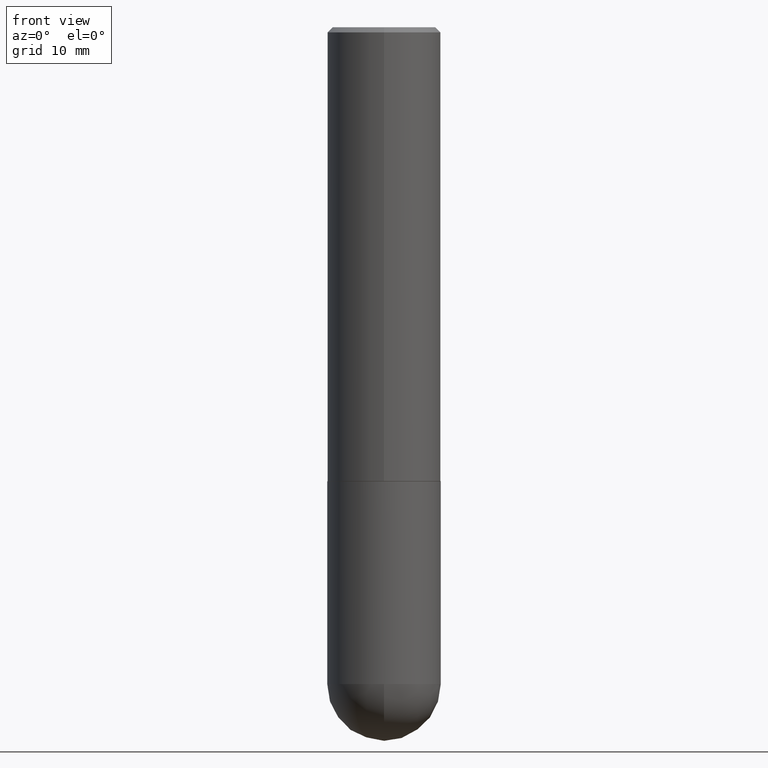
[diagram: clean part render]
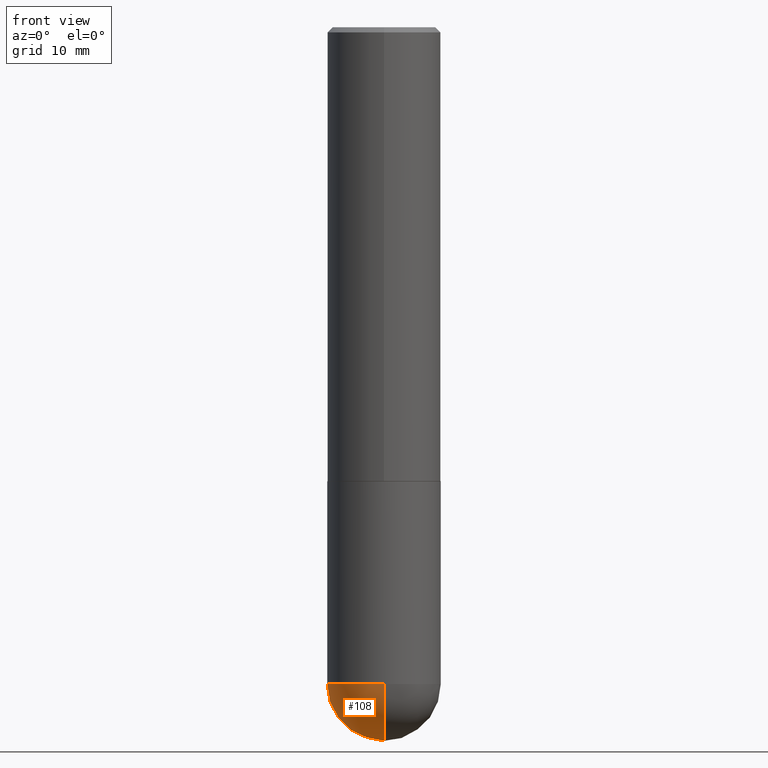
[diagram: same view with one face highlighted and labeled with its STEP entity id]
A machine part, front view. The second image highlights one B-rep face of the part: STEP entity #108.
In plain terms, the highlighted spherical surface has radius 5.5563 mm.
Its self-contained STEP definition (entity closure, byte-faithful):
#8 = AXIS2_PLACEMENT_3D ( 'NONE', #195, #20, #279 ) ;
#20 = DIRECTION ( 'NONE',  ( -2.445468806185136597E-29, 3.491481338843145583E-15, 1.000000000000000000 ) ) ;
#67 = DIRECTION ( 'NONE',  ( -2.445468806185136597E-29, 3.491481338843145583E-15, 1.000000000000000000 ) ) ;
#69 = CARTESIAN_POINT ( 'NONE',  ( 5.858973137742240763E-29, -9.311994507086761184E-15, -2.531250000000000000 ) ) ;
#93 = FACE_OUTER_BOUND ( 'NONE', #135, .T. ) ;
#101 = CARTESIAN_POINT ( 'NONE',  ( 5.858973137742240763E-29, -9.311994507086761184E-15, -2.531250000000000000 ) ) ;
#108 = ADVANCED_FACE ( 'NONE', ( #93 ), #369, .T. ) ;
#135 = EDGE_LOOP ( 'NONE', ( #190, #277, #231, #411 ) ) ;
#137 = DIRECTION ( 'NONE',  ( -1.000000000000000000, 6.982962677686265922E-15, -4.883557194083112340E-29 ) ) ;
#140 = EDGE_CURVE ( 'NONE', #288, #257, #159, .T. ) ;
#143 = EDGE_CURVE ( 'NONE', #257, #254, #242, .T. ) ;
#159 = CIRCLE ( 'NONE', #263, 0.2187499999999999445 ) ;
#162 = CARTESIAN_POINT ( 'NONE',  ( 6.190092915656127011E-29, -8.837812138946710888E-15, -2.531250000000000000 ) ) ;
#172 = DIRECTION ( 'NONE',  ( 6.982962677686265922E-15, 1.000000000000000000, 0.000000000000000000 ) ) ;
#190 = ORIENTED_EDGE ( 'NONE', *, *, #360, .F. ) ;
#191 = CARTESIAN_POINT ( 'NONE',  ( 1.527523085743931191E-15, 0.2187499999999910072, -2.531250000000000444 ) ) ;
#195 = CARTESIAN_POINT ( 'NONE',  ( 6.190092915656127011E-29, -8.837812138946710888E-15, -2.531250000000000000 ) ) ;
#231 = ORIENTED_EDGE ( 'NONE', *, *, #143, .F. ) ;
#242 = CIRCLE ( 'NONE', #8, 0.2187499999999999445 ) ;
#254 = VERTEX_POINT ( 'NONE', #261 ) ;
#257 = VERTEX_POINT ( 'NONE', #379 ) ;
#261 = CARTESIAN_POINT ( 'NONE',  ( -1.554312234475159203E-15, -0.2187500000000091871, -2.531249999999999556 ) ) ;
#263 = AXIS2_PLACEMENT_3D ( 'NONE', #162, #67, #310 ) ;
#264 = AXIS2_PLACEMENT_3D ( 'NONE', #101, #278, #172 ) ;
#277 = ORIENTED_EDGE ( 'NONE', *, *, #308, .T. ) ;
#278 = DIRECTION ( 'NONE',  ( 1.000000000000000000, -6.982962677686265922E-15, 4.883557194083112340E-29 ) ) ;
#279 = DIRECTION ( 'NONE',  ( 1.000000000000000000, -6.982962677686265133E-15, 0.000000000000000000 ) ) ;
#287 = AXIS2_PLACEMENT_3D ( 'NONE', #339, #137, #348 ) ;
#288 = VERTEX_POINT ( 'NONE', #191 ) ;
#290 = DIRECTION ( 'NONE',  ( -7.105427357601001070E-15, -1.000000000000000000, 0.000000000000000000 ) ) ;
#308 = EDGE_CURVE ( 'NONE', #375, #254, #326, .T. ) ;
#310 = DIRECTION ( 'NONE',  ( 1.000000000000000000, -6.982962677686265133E-15, 0.000000000000000000 ) ) ;
#326 = CIRCLE ( 'NONE', #382, 0.2187500000000001943 ) ;
#339 = CARTESIAN_POINT ( 'NONE',  ( 5.858973137742240763E-29, -9.311994507086761184E-15, -2.531250000000000000 ) ) ;
#341 = CARTESIAN_POINT ( 'NONE',  ( 6.403272820383139972E-29, -1.006236147559302482E-14, -2.750000000000000000 ) ) ;
#345 = CIRCLE ( 'NONE', #264, 0.2187500000000001943 ) ;
#347 = DIRECTION ( 'NONE',  ( -1.000000000000000000, 7.105427357601001070E-15, -4.926315508542082329E-29 ) ) ;
#348 = DIRECTION ( 'NONE',  ( 6.982962677686265922E-15, 1.000000000000000000, -2.497689594207324005E-15 ) ) ;
#360 = EDGE_CURVE ( 'NONE', #375, #288, #345, .T. ) ;
#369 = SPHERICAL_SURFACE ( 'NONE', #287, 0.2187500000000001943 ) ;
#375 = VERTEX_POINT ( 'NONE', #341 ) ;
#379 = CARTESIAN_POINT ( 'NONE',  ( -0.2187499999999999445, -5.919640006485891384E-15, -2.531250000000000000 ) ) ;
#382 = AXIS2_PLACEMENT_3D ( 'NONE', #69, #347, #290 ) ;
#411 = ORIENTED_EDGE ( 'NONE', *, *, #140, .F. ) ;